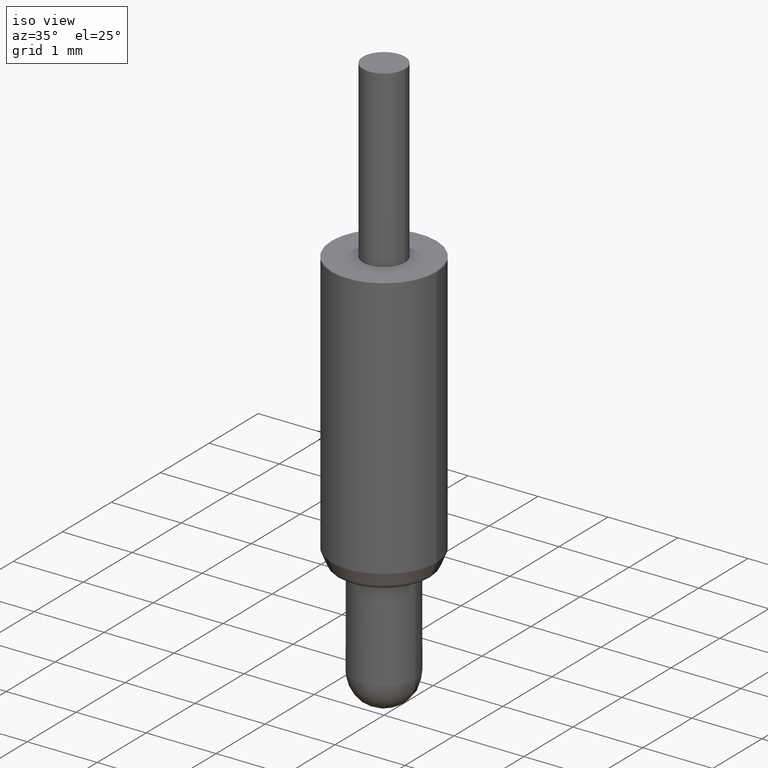
[diagram: clean part render]
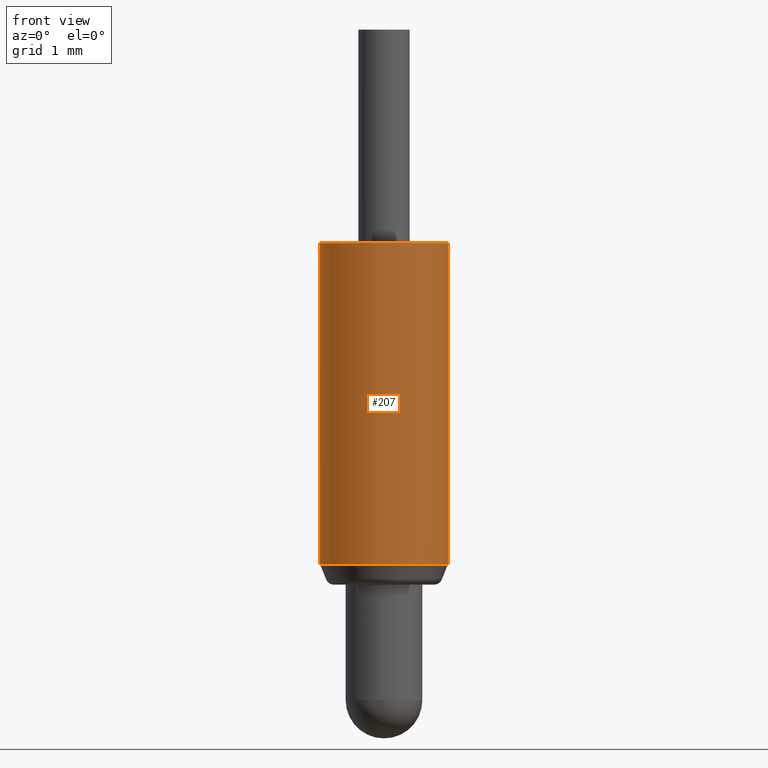
[diagram: tour spotlight — one face highlighted and labeled with its STEP entity id]
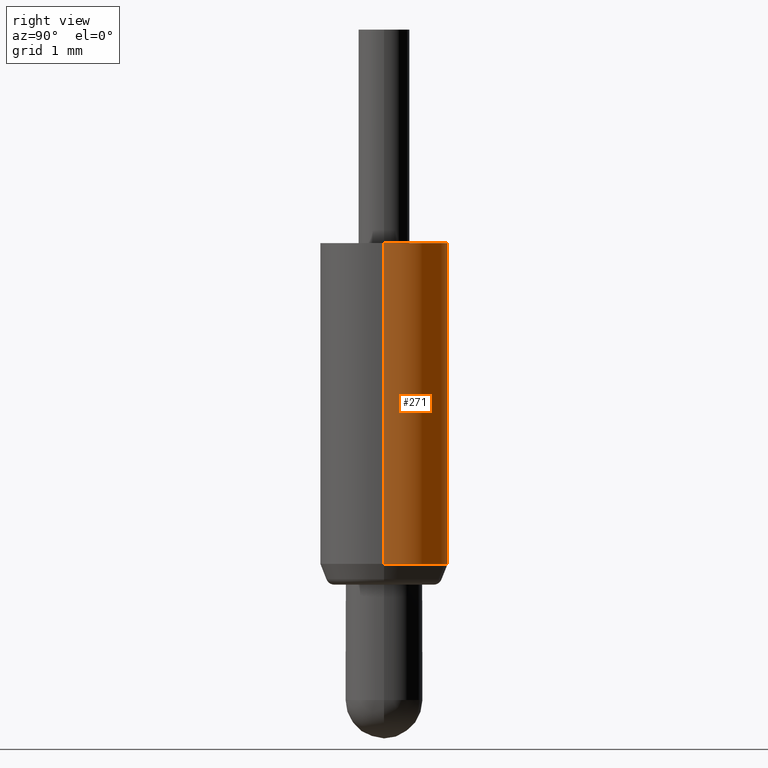
[diagram: tour spotlight — one face highlighted and labeled with its STEP entity id]
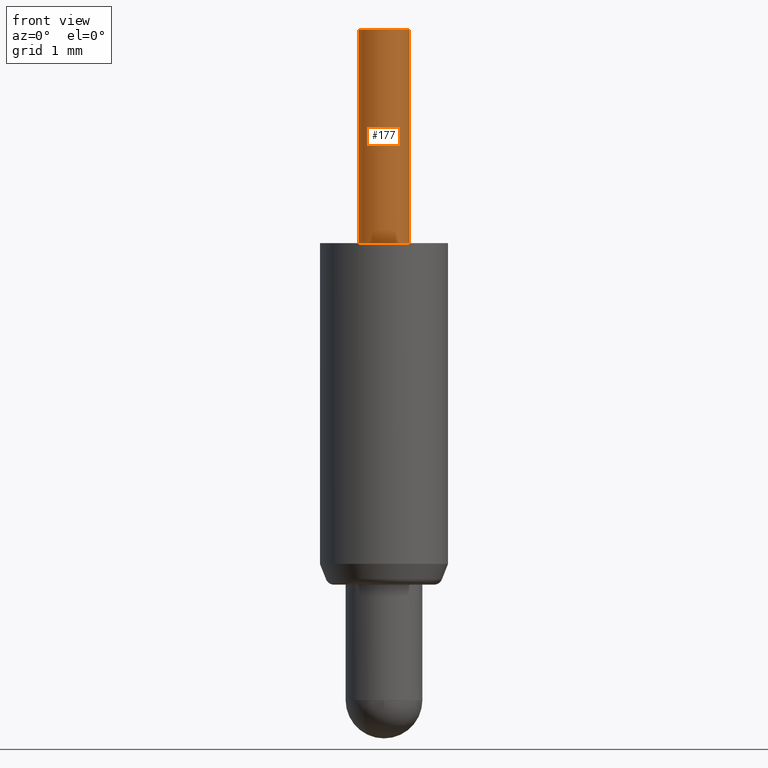
[diagram: tour spotlight — one face highlighted and labeled with its STEP entity id]
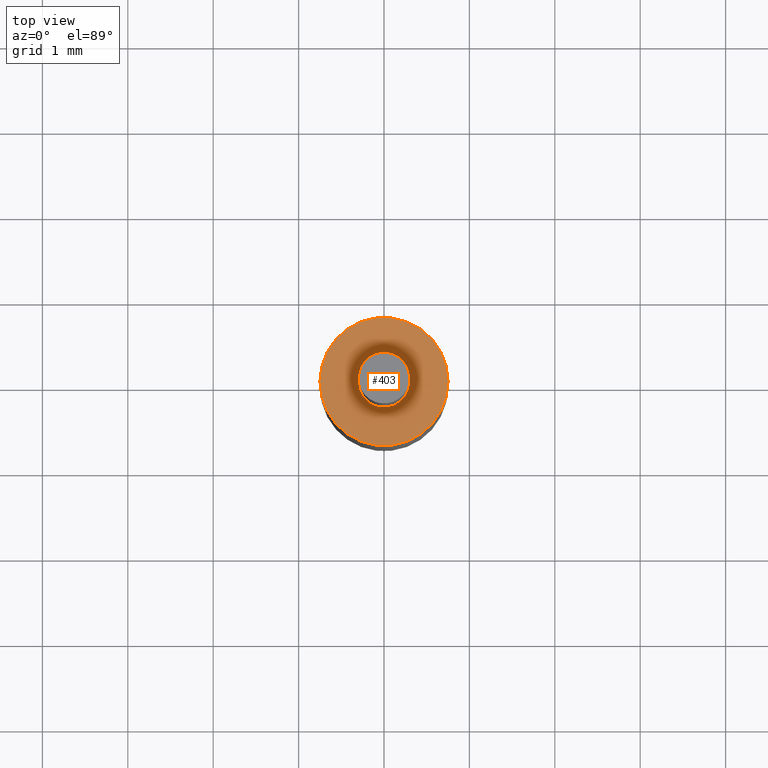
[diagram: tour spotlight — one face highlighted and labeled with its STEP entity id]
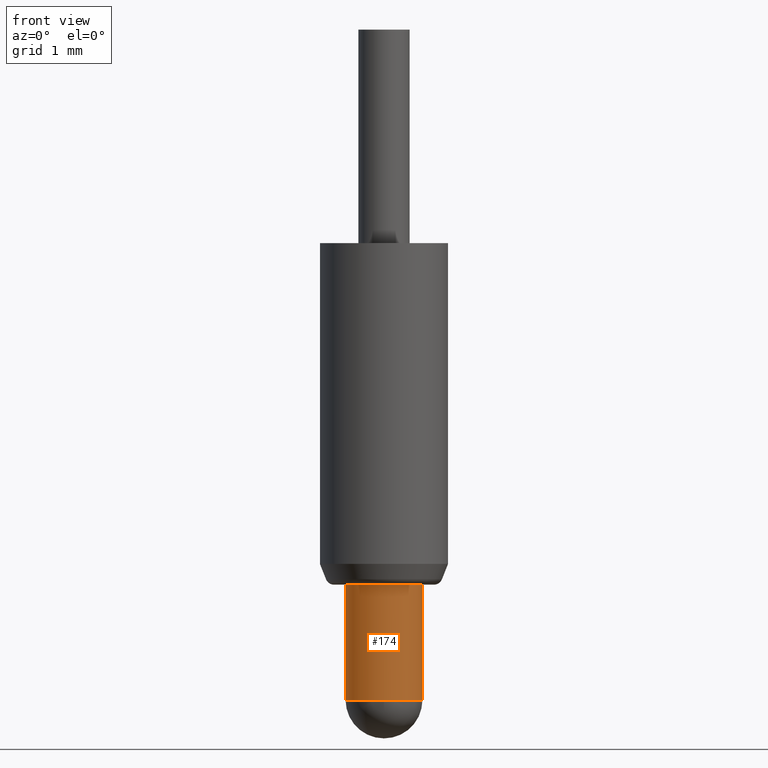
[diagram: tour spotlight — one face highlighted and labeled with its STEP entity id]
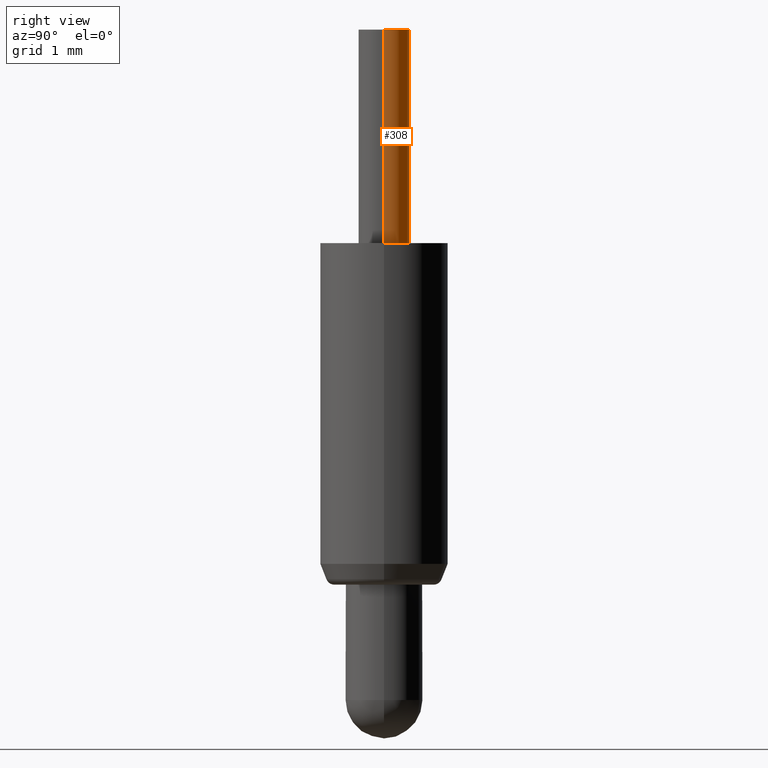
[diagram: tour spotlight — one face highlighted and labeled with its STEP entity id]
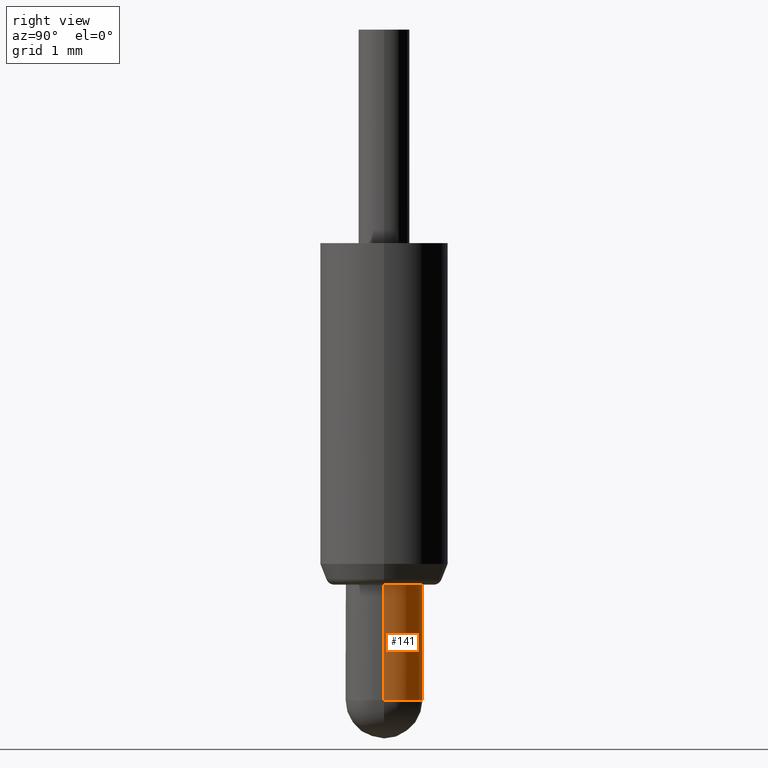
[diagram: tour spotlight — one face highlighted and labeled with its STEP entity id]
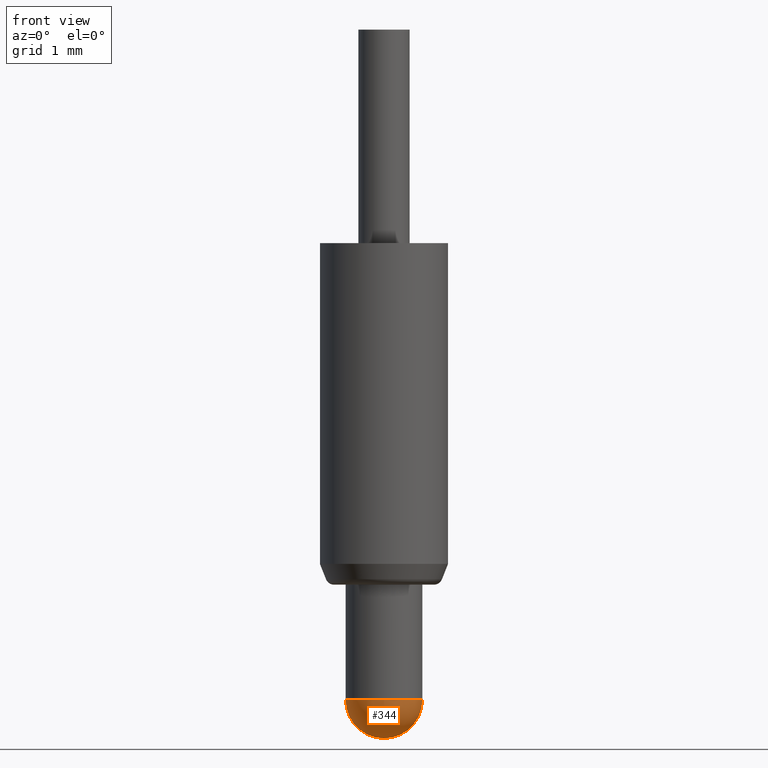
[diagram: tour spotlight — one face highlighted and labeled with its STEP entity id]
A machine part: a face-by-face anatomy tour. The part has 15 B-rep faces; the first image is the clean iso view, then the 8 largest visible faces are spotlighted one at a time (largest first), each with its STEP entity span.

Face 1 — front view, entity #207. In plain terms, the highlighted cylindrical surface (partial cylindrical patch) has radius 0.75 mm, axis along (-0, -0, 1).
Definition (entity closure, byte-faithful):
#12 = EDGE_CURVE ( 'NONE', #266, #188, #50, .T. ) ;
#24 = CARTESIAN_POINT ( 'NONE',  ( 0.7499999999999995600, 0.0000000000000000000, 5.799999999999999800 ) ) ;
#26 = EDGE_LOOP ( 'NONE', ( #83, #292, #402, #235 ) ) ;
#35 = CARTESIAN_POINT ( 'NONE',  ( 0.0000000000000000000, 0.0000000000000000000, 5.799999999999999800 ) ) ;
#37 = AXIS2_PLACEMENT_3D ( 'NONE', #35, #196, #395 ) ;
#41 = LINE ( 'NONE', #153, #270 ) ;
#50 = LINE ( 'NONE', #245, #384 ) ;
#56 = DIRECTION ( 'NONE',  ( -0.0000000000000000000, -0.0000000000000000000, 1.000000000000000000 ) ) ;
#64 = AXIS2_PLACEMENT_3D ( 'NONE', #198, #56, #168 ) ;
#73 = DIRECTION ( 'NONE',  ( -0.0000000000000000000, -0.0000000000000000000, 1.000000000000000000 ) ) ;
#83 = ORIENTED_EDGE ( 'NONE', *, *, #205, .F. ) ;
#87 = CARTESIAN_POINT ( 'NONE',  ( 0.0000000000000000000, 0.0000000000000000000, 8.300000000000000700 ) ) ;
#131 = CARTESIAN_POINT ( 'NONE',  ( -0.7500000000000000000, 9.184850993605150900E-017, 2.043174604063049000 ) ) ;
#147 = CARTESIAN_POINT ( 'NONE',  ( 0.7500000000000000000, 0.0000000000000000000, 2.043174604063049000 ) ) ;
#153 = CARTESIAN_POINT ( 'NONE',  ( -0.7499999999999997800, 9.184850993605147200E-017, 8.300000000000000700 ) ) ;
#168 = DIRECTION ( 'NONE',  ( 1.000000000000000000, 0.0000000000000000000, 0.0000000000000000000 ) ) ;
#188 = VERTEX_POINT ( 'NONE', #24 ) ;
#196 = DIRECTION ( 'NONE',  ( -0.0000000000000000000, -0.0000000000000000000, 1.000000000000000000 ) ) ;
#198 = CARTESIAN_POINT ( 'NONE',  ( 0.0000000000000000000, 0.0000000000000000000, 2.043174604063049000 ) ) ;
#205 = EDGE_CURVE ( 'NONE', #408, #255, #41, .T. ) ;
#207 = ADVANCED_FACE ( 'NONE', ( #337 ), #331, .T. ) ;
#214 = CIRCLE ( 'NONE', #64, 0.7500000000000000000 ) ;
#223 = AXIS2_PLACEMENT_3D ( 'NONE', #87, #226, #288 ) ;
#226 = DIRECTION ( 'NONE',  ( -0.0000000000000000000, -0.0000000000000000000, 1.000000000000000000 ) ) ;
#235 = ORIENTED_EDGE ( 'NONE', *, *, #394, .F. ) ;
#245 = CARTESIAN_POINT ( 'NONE',  ( 0.7499999999999997800, 0.0000000000000000000, 8.300000000000000700 ) ) ;
#255 = VERTEX_POINT ( 'NONE', #286 ) ;
#266 = VERTEX_POINT ( 'NONE', #147 ) ;
#270 = VECTOR ( 'NONE', #330, 1000.000000000000000 ) ;
#286 = CARTESIAN_POINT ( 'NONE',  ( -0.7499999999999995600, 9.184850993605146000E-017, 5.799999999999999800 ) ) ;
#288 = DIRECTION ( 'NONE',  ( 1.000000000000000000, 0.0000000000000000000, 0.0000000000000000000 ) ) ;
#292 = ORIENTED_EDGE ( 'NONE', *, *, #361, .T. ) ;
#330 = DIRECTION ( 'NONE',  ( -0.0000000000000000000, -0.0000000000000000000, 1.000000000000000000 ) ) ;
#331 = CYLINDRICAL_SURFACE ( 'NONE', #223, 0.7499999999999997800 ) ;
#337 = FACE_OUTER_BOUND ( 'NONE', #26, .T. ) ;
#361 = EDGE_CURVE ( 'NONE', #408, #266, #214, .T. ) ;
#375 = CIRCLE ( 'NONE', #37, 0.7499999999999995600 ) ;
#384 = VECTOR ( 'NONE', #73, 1000.000000000000000 ) ;
#394 = EDGE_CURVE ( 'NONE', #255, #188, #375, .T. ) ;
#395 = DIRECTION ( 'NONE',  ( 1.000000000000000000, 0.0000000000000000000, 0.0000000000000000000 ) ) ;
#402 = ORIENTED_EDGE ( 'NONE', *, *, #12, .T. ) ;
#408 = VERTEX_POINT ( 'NONE', #131 ) ;

Face 2 — right view, entity #271. In plain terms, the highlighted cylindrical surface (partial cylindrical patch) has radius 0.75 mm, axis along (-0, -0, 1).
Definition (entity closure, byte-faithful):
#12 = EDGE_CURVE ( 'NONE', #266, #188, #50, .T. ) ;
#24 = CARTESIAN_POINT ( 'NONE',  ( 0.7499999999999995600, 0.0000000000000000000, 5.799999999999999800 ) ) ;
#41 = LINE ( 'NONE', #153, #270 ) ;
#48 = DIRECTION ( 'NONE',  ( -0.0000000000000000000, -0.0000000000000000000, 1.000000000000000000 ) ) ;
#50 = LINE ( 'NONE', #245, #384 ) ;
#73 = DIRECTION ( 'NONE',  ( -0.0000000000000000000, -0.0000000000000000000, 1.000000000000000000 ) ) ;
#78 = DIRECTION ( 'NONE',  ( 1.000000000000000000, 0.0000000000000000000, 0.0000000000000000000 ) ) ;
#101 = AXIS2_PLACEMENT_3D ( 'NONE', #320, #48, #78 ) ;
#118 = EDGE_CURVE ( 'NONE', #266, #408, #341, .T. ) ;
#131 = CARTESIAN_POINT ( 'NONE',  ( -0.7500000000000000000, 9.184850993605150900E-017, 2.043174604063049000 ) ) ;
#137 = CIRCLE ( 'NONE', #287, 0.7499999999999995600 ) ;
#147 = CARTESIAN_POINT ( 'NONE',  ( 0.7500000000000000000, 0.0000000000000000000, 2.043174604063049000 ) ) ;
#152 = CARTESIAN_POINT ( 'NONE',  ( 0.0000000000000000000, 0.0000000000000000000, 5.799999999999999800 ) ) ;
#153 = CARTESIAN_POINT ( 'NONE',  ( -0.7499999999999997800, 9.184850993605147200E-017, 8.300000000000000700 ) ) ;
#172 = FACE_OUTER_BOUND ( 'NONE', #313, .T. ) ;
#179 = ORIENTED_EDGE ( 'NONE', *, *, #205, .T. ) ;
#188 = VERTEX_POINT ( 'NONE', #24 ) ;
#192 = CARTESIAN_POINT ( 'NONE',  ( 0.0000000000000000000, 0.0000000000000000000, 8.300000000000000700 ) ) ;
#205 = EDGE_CURVE ( 'NONE', #408, #255, #41, .T. ) ;
#209 = AXIS2_PLACEMENT_3D ( 'NONE', #192, #424, #381 ) ;
#245 = CARTESIAN_POINT ( 'NONE',  ( 0.7499999999999997800, 0.0000000000000000000, 8.300000000000000700 ) ) ;
#255 = VERTEX_POINT ( 'NONE', #286 ) ;
#266 = VERTEX_POINT ( 'NONE', #147 ) ;
#270 = VECTOR ( 'NONE', #330, 1000.000000000000000 ) ;
#271 = ADVANCED_FACE ( 'NONE', ( #172 ), #315, .T. ) ;
#286 = CARTESIAN_POINT ( 'NONE',  ( -0.7499999999999995600, 9.184850993605146000E-017, 5.799999999999999800 ) ) ;
#287 = AXIS2_PLACEMENT_3D ( 'NONE', #152, #387, #358 ) ;
#313 = EDGE_LOOP ( 'NONE', ( #348, #179, #373, #398 ) ) ;
#315 = CYLINDRICAL_SURFACE ( 'NONE', #209, 0.7499999999999997800 ) ;
#320 = CARTESIAN_POINT ( 'NONE',  ( 0.0000000000000000000, 0.0000000000000000000, 2.043174604063049000 ) ) ;
#330 = DIRECTION ( 'NONE',  ( -0.0000000000000000000, -0.0000000000000000000, 1.000000000000000000 ) ) ;
#341 = CIRCLE ( 'NONE', #101, 0.7500000000000000000 ) ;
#342 = EDGE_CURVE ( 'NONE', #188, #255, #137, .T. ) ;
#348 = ORIENTED_EDGE ( 'NONE', *, *, #118, .T. ) ;
#358 = DIRECTION ( 'NONE',  ( 1.000000000000000000, 0.0000000000000000000, 0.0000000000000000000 ) ) ;
#373 = ORIENTED_EDGE ( 'NONE', *, *, #342, .F. ) ;
#381 = DIRECTION ( 'NONE',  ( 1.000000000000000000, 0.0000000000000000000, 0.0000000000000000000 ) ) ;
#384 = VECTOR ( 'NONE', #73, 1000.000000000000000 ) ;
#387 = DIRECTION ( 'NONE',  ( -0.0000000000000000000, -0.0000000000000000000, 1.000000000000000000 ) ) ;
#398 = ORIENTED_EDGE ( 'NONE', *, *, #12, .F. ) ;
#408 = VERTEX_POINT ( 'NONE', #131 ) ;
#424 = DIRECTION ( 'NONE',  ( -0.0000000000000000000, -0.0000000000000000000, 1.000000000000000000 ) ) ;

Face 3 — front view, entity #177. In plain terms, the highlighted cylindrical surface (edge-blend (fillet) strip) has radius 0.3 mm, axis along (-0, -0, 1).
Definition (entity closure, byte-faithful):
#10 = VECTOR ( 'NONE', #355, 1000.000000000000000 ) ;
#17 = DIRECTION ( 'NONE',  ( -0.0000000000000000000, -0.0000000000000000000, 1.000000000000000000 ) ) ;
#18 = DIRECTION ( 'NONE',  ( 1.000000000000000000, 0.0000000000000000000, 0.0000000000000000000 ) ) ;
#21 = CARTESIAN_POINT ( 'NONE',  ( -0.2999999999999999300, 3.673940397442058900E-017, 5.799999999999999800 ) ) ;
#22 = CARTESIAN_POINT ( 'NONE',  ( 0.2999999999999998200, 0.0000000000000000000, 8.300000000000000700 ) ) ;
#30 = AXIS2_PLACEMENT_3D ( 'NONE', #114, #252, #18 ) ;
#44 = ORIENTED_EDGE ( 'NONE', *, *, #275, .T. ) ;
#57 = CIRCLE ( 'NONE', #283, 0.2999999999999999900 ) ;
#62 = VECTOR ( 'NONE', #17, 1000.000000000000000 ) ;
#66 = CYLINDRICAL_SURFACE ( 'NONE', #98, 0.2999999999999998200 ) ;
#68 = LINE ( 'NONE', #146, #62 ) ;
#80 = DIRECTION ( 'NONE',  ( -0.0000000000000000000, -0.0000000000000000000, 1.000000000000000000 ) ) ;
#86 = EDGE_LOOP ( 'NONE', ( #346, #269, #44, #356 ) ) ;
#97 = EDGE_CURVE ( 'NONE', #156, #103, #68, .T. ) ;
#98 = AXIS2_PLACEMENT_3D ( 'NONE', #414, #80, #324 ) ;
#103 = VERTEX_POINT ( 'NONE', #276 ) ;
#114 = CARTESIAN_POINT ( 'NONE',  ( 0.0000000000000000000, 0.0000000000000000000, 8.300000000000000700 ) ) ;
#122 = CARTESIAN_POINT ( 'NONE',  ( 0.0000000000000000000, 0.0000000000000000000, 5.799999999999999800 ) ) ;
#146 = CARTESIAN_POINT ( 'NONE',  ( -0.2999999999999998200, 3.673940397442057600E-017, 8.300000000000000700 ) ) ;
#156 = VERTEX_POINT ( 'NONE', #21 ) ;
#177 = ADVANCED_FACE ( 'NONE', ( #370 ), #66, .T. ) ;
#181 = VERTEX_POINT ( 'NONE', #423 ) ;
#183 = LINE ( 'NONE', #22, #10 ) ;
#238 = EDGE_CURVE ( 'NONE', #103, #380, #425, .T. ) ;
#241 = EDGE_CURVE ( 'NONE', #156, #181, #57, .T. ) ;
#252 = DIRECTION ( 'NONE',  ( -0.0000000000000000000, -0.0000000000000000000, 1.000000000000000000 ) ) ;
#269 = ORIENTED_EDGE ( 'NONE', *, *, #241, .T. ) ;
#275 = EDGE_CURVE ( 'NONE', #181, #380, #183, .T. ) ;
#276 = CARTESIAN_POINT ( 'NONE',  ( -0.2999999999999996600, 3.673940397442057000E-017, 8.300000000000000700 ) ) ;
#283 = AXIS2_PLACEMENT_3D ( 'NONE', #122, #325, #328 ) ;
#324 = DIRECTION ( 'NONE',  ( 1.000000000000000000, 0.0000000000000000000, 0.0000000000000000000 ) ) ;
#325 = DIRECTION ( 'NONE',  ( -0.0000000000000000000, -0.0000000000000000000, 1.000000000000000000 ) ) ;
#328 = DIRECTION ( 'NONE',  ( 1.000000000000000000, 0.0000000000000000000, 0.0000000000000000000 ) ) ;
#346 = ORIENTED_EDGE ( 'NONE', *, *, #97, .F. ) ;
#355 = DIRECTION ( 'NONE',  ( -0.0000000000000000000, -0.0000000000000000000, 1.000000000000000000 ) ) ;
#356 = ORIENTED_EDGE ( 'NONE', *, *, #238, .F. ) ;
#365 = CARTESIAN_POINT ( 'NONE',  ( 0.2999999999999996600, 0.0000000000000000000, 8.300000000000000700 ) ) ;
#370 = FACE_OUTER_BOUND ( 'NONE', #86, .T. ) ;
#380 = VERTEX_POINT ( 'NONE', #365 ) ;
#414 = CARTESIAN_POINT ( 'NONE',  ( 0.0000000000000000000, 0.0000000000000000000, 8.300000000000000700 ) ) ;
#423 = CARTESIAN_POINT ( 'NONE',  ( 0.2999999999999999900, 0.0000000000000000000, 5.799999999999999800 ) ) ;
#425 = CIRCLE ( 'NONE', #30, 0.2999999999999996600 ) ;

Face 4 — top view, entity #403. In plain terms, the highlighted planar face has unit normal (0, 0, -1).
Definition (entity closure, byte-faithful):
#1 = PLANE ( 'NONE',  #302 ) ;
#21 = CARTESIAN_POINT ( 'NONE',  ( -0.2999999999999999300, 3.673940397442058900E-017, 5.799999999999999800 ) ) ;
#24 = CARTESIAN_POINT ( 'NONE',  ( 0.7499999999999995600, 0.0000000000000000000, 5.799999999999999800 ) ) ;
#33 = ORIENTED_EDGE ( 'NONE', *, *, #241, .F. ) ;
#35 = CARTESIAN_POINT ( 'NONE',  ( 0.0000000000000000000, 0.0000000000000000000, 5.799999999999999800 ) ) ;
#37 = AXIS2_PLACEMENT_3D ( 'NONE', #35, #196, #395 ) ;
#57 = CIRCLE ( 'NONE', #283, 0.2999999999999999900 ) ;
#60 = DIRECTION ( 'NONE',  ( 1.000000000000000000, 0.0000000000000000000, 0.0000000000000000000 ) ) ;
#63 = DIRECTION ( 'NONE',  ( -1.000000000000000000, 0.0000000000000000000, -0.0000000000000000000 ) ) ;
#120 = ORIENTED_EDGE ( 'NONE', *, *, #215, .F. ) ;
#122 = CARTESIAN_POINT ( 'NONE',  ( 0.0000000000000000000, 0.0000000000000000000, 5.799999999999999800 ) ) ;
#123 = FACE_OUTER_BOUND ( 'NONE', #228, .T. ) ;
#129 = DIRECTION ( 'NONE',  ( -0.0000000000000000000, -0.0000000000000000000, 1.000000000000000000 ) ) ;
#137 = CIRCLE ( 'NONE', #287, 0.7499999999999995600 ) ;
#152 = CARTESIAN_POINT ( 'NONE',  ( 0.0000000000000000000, 0.0000000000000000000, 5.799999999999999800 ) ) ;
#155 = ORIENTED_EDGE ( 'NONE', *, *, #394, .T. ) ;
#156 = VERTEX_POINT ( 'NONE', #21 ) ;
#181 = VERTEX_POINT ( 'NONE', #423 ) ;
#187 = EDGE_LOOP ( 'NONE', ( #120, #33 ) ) ;
#188 = VERTEX_POINT ( 'NONE', #24 ) ;
#196 = DIRECTION ( 'NONE',  ( -0.0000000000000000000, -0.0000000000000000000, 1.000000000000000000 ) ) ;
#213 = FACE_BOUND ( 'NONE', #187, .T. ) ;
#215 = EDGE_CURVE ( 'NONE', #181, #156, #363, .T. ) ;
#228 = EDGE_LOOP ( 'NONE', ( #369, #155 ) ) ;
#234 = DIRECTION ( 'NONE',  ( 0.0000000000000000000, 0.0000000000000000000, -1.000000000000000000 ) ) ;
#241 = EDGE_CURVE ( 'NONE', #156, #181, #57, .T. ) ;
#255 = VERTEX_POINT ( 'NONE', #286 ) ;
#265 = CARTESIAN_POINT ( 'NONE',  ( -0.7499999999999995600, 0.0000000000000000000, 5.799999999999999800 ) ) ;
#283 = AXIS2_PLACEMENT_3D ( 'NONE', #122, #325, #328 ) ;
#286 = CARTESIAN_POINT ( 'NONE',  ( -0.7499999999999995600, 9.184850993605146000E-017, 5.799999999999999800 ) ) ;
#287 = AXIS2_PLACEMENT_3D ( 'NONE', #152, #387, #358 ) ;
#298 = CARTESIAN_POINT ( 'NONE',  ( 0.0000000000000000000, 0.0000000000000000000, 5.799999999999999800 ) ) ;
#302 = AXIS2_PLACEMENT_3D ( 'NONE', #265, #234, #63 ) ;
#304 = AXIS2_PLACEMENT_3D ( 'NONE', #298, #129, #60 ) ;
#325 = DIRECTION ( 'NONE',  ( -0.0000000000000000000, -0.0000000000000000000, 1.000000000000000000 ) ) ;
#328 = DIRECTION ( 'NONE',  ( 1.000000000000000000, 0.0000000000000000000, 0.0000000000000000000 ) ) ;
#342 = EDGE_CURVE ( 'NONE', #188, #255, #137, .T. ) ;
#358 = DIRECTION ( 'NONE',  ( 1.000000000000000000, 0.0000000000000000000, 0.0000000000000000000 ) ) ;
#363 = CIRCLE ( 'NONE', #304, 0.2999999999999999900 ) ;
#369 = ORIENTED_EDGE ( 'NONE', *, *, #342, .T. ) ;
#375 = CIRCLE ( 'NONE', #37, 0.7499999999999995600 ) ;
#387 = DIRECTION ( 'NONE',  ( -0.0000000000000000000, -0.0000000000000000000, 1.000000000000000000 ) ) ;
#394 = EDGE_CURVE ( 'NONE', #255, #188, #375, .T. ) ;
#395 = DIRECTION ( 'NONE',  ( 1.000000000000000000, 0.0000000000000000000, 0.0000000000000000000 ) ) ;
#403 = ADVANCED_FACE ( 'NONE', ( #213, #123 ), #1, .F. ) ;
#423 = CARTESIAN_POINT ( 'NONE',  ( 0.2999999999999999900, 0.0000000000000000000, 5.799999999999999800 ) ) ;

Face 5 — front view, entity #174. In plain terms, the highlighted cylindrical surface (partial cylindrical patch) has radius 0.45 mm, axis along (-0, -0, 1).
Definition (entity closure, byte-faithful):
#3 = VERTEX_POINT ( 'NONE', #106 ) ;
#34 = ORIENTED_EDGE ( 'NONE', *, *, #419, .F. ) ;
#42 = CIRCLE ( 'NONE', #406, 0.4499999999999997900 ) ;
#46 = CARTESIAN_POINT ( 'NONE',  ( -0.4499999999999997900, 5.510910596163086500E-017, 1.799999999999999600 ) ) ;
#65 = VERTEX_POINT ( 'NONE', #46 ) ;
#76 = FACE_OUTER_BOUND ( 'NONE', #139, .T. ) ;
#79 = ORIENTED_EDGE ( 'NONE', *, *, #374, .T. ) ;
#88 = DIRECTION ( 'NONE',  ( 1.000000000000000000, 0.0000000000000000000, 0.0000000000000000000 ) ) ;
#93 = CARTESIAN_POINT ( 'NONE',  ( -0.4499999999999999000, 5.510910596163087700E-017, 8.300000000000000700 ) ) ;
#105 = AXIS2_PLACEMENT_3D ( 'NONE', #336, #335, #263 ) ;
#106 = CARTESIAN_POINT ( 'NONE',  ( -0.4499999999999999000, 5.510910596163087700E-017, 0.4500000000000007300 ) ) ;
#113 = CARTESIAN_POINT ( 'NONE',  ( 0.4499999999999999000, 0.0000000000000000000, 0.4500000000000007300 ) ) ;
#116 = CIRCLE ( 'NONE', #105, 0.4499999999999999000 ) ;
#126 = DIRECTION ( 'NONE',  ( -0.0000000000000000000, -0.0000000000000000000, 1.000000000000000000 ) ) ;
#139 = EDGE_LOOP ( 'NONE', ( #390, #357, #79, #34 ) ) ;
#166 = CYLINDRICAL_SURFACE ( 'NONE', #393, 0.4499999999999999000 ) ;
#170 = VERTEX_POINT ( 'NONE', #113 ) ;
#174 = ADVANCED_FACE ( 'NONE', ( #76 ), #166, .T. ) ;
#191 = DIRECTION ( 'NONE',  ( -0.0000000000000000000, -0.0000000000000000000, 1.000000000000000000 ) ) ;
#193 = CARTESIAN_POINT ( 'NONE',  ( 0.4499999999999997900, 0.0000000000000000000, 1.799999999999999600 ) ) ;
#202 = LINE ( 'NONE', #237, #303 ) ;
#204 = VECTOR ( 'NONE', #126, 1000.000000000000000 ) ;
#237 = CARTESIAN_POINT ( 'NONE',  ( 0.4499999999999999000, 0.0000000000000000000, 8.300000000000000700 ) ) ;
#251 = VERTEX_POINT ( 'NONE', #193 ) ;
#263 = DIRECTION ( 'NONE',  ( 1.000000000000000000, 0.0000000000000000000, 0.0000000000000000000 ) ) ;
#282 = CARTESIAN_POINT ( 'NONE',  ( 0.0000000000000000000, 0.0000000000000000000, 8.300000000000000700 ) ) ;
#284 = LINE ( 'NONE', #93, #204 ) ;
#291 = DIRECTION ( 'NONE',  ( -0.0000000000000000000, -0.0000000000000000000, 1.000000000000000000 ) ) ;
#301 = CARTESIAN_POINT ( 'NONE',  ( 0.0000000000000000000, 0.0000000000000000000, 1.799999999999999600 ) ) ;
#303 = VECTOR ( 'NONE', #332, 1000.000000000000000 ) ;
#332 = DIRECTION ( 'NONE',  ( -0.0000000000000000000, -0.0000000000000000000, 1.000000000000000000 ) ) ;
#335 = DIRECTION ( 'NONE',  ( -0.0000000000000000000, -0.0000000000000000000, 1.000000000000000000 ) ) ;
#336 = CARTESIAN_POINT ( 'NONE',  ( 0.0000000000000000000, 0.0000000000000000000, 0.4500000000000007300 ) ) ;
#350 = DIRECTION ( 'NONE',  ( 1.000000000000000000, 0.0000000000000000000, 0.0000000000000000000 ) ) ;
#357 = ORIENTED_EDGE ( 'NONE', *, *, #377, .T. ) ;
#374 = EDGE_CURVE ( 'NONE', #170, #251, #202, .T. ) ;
#377 = EDGE_CURVE ( 'NONE', #3, #170, #116, .T. ) ;
#390 = ORIENTED_EDGE ( 'NONE', *, *, #401, .F. ) ;
#393 = AXIS2_PLACEMENT_3D ( 'NONE', #282, #191, #350 ) ;
#401 = EDGE_CURVE ( 'NONE', #3, #65, #284, .T. ) ;
#406 = AXIS2_PLACEMENT_3D ( 'NONE', #301, #291, #88 ) ;
#419 = EDGE_CURVE ( 'NONE', #65, #251, #42, .T. ) ;

Face 6 — right view, entity #308. In plain terms, the highlighted cylindrical surface (edge-blend (fillet) strip) has radius 0.3 mm, axis along (-0, -0, 1).
Definition (entity closure, byte-faithful):
#10 = VECTOR ( 'NONE', #355, 1000.000000000000000 ) ;
#17 = DIRECTION ( 'NONE',  ( -0.0000000000000000000, -0.0000000000000000000, 1.000000000000000000 ) ) ;
#21 = CARTESIAN_POINT ( 'NONE',  ( -0.2999999999999999300, 3.673940397442058900E-017, 5.799999999999999800 ) ) ;
#22 = CARTESIAN_POINT ( 'NONE',  ( 0.2999999999999998200, 0.0000000000000000000, 8.300000000000000700 ) ) ;
#45 = FACE_OUTER_BOUND ( 'NONE', #216, .T. ) ;
#51 = DIRECTION ( 'NONE',  ( 1.000000000000000000, 0.0000000000000000000, 0.0000000000000000000 ) ) ;
#60 = DIRECTION ( 'NONE',  ( 1.000000000000000000, 0.0000000000000000000, 0.0000000000000000000 ) ) ;
#62 = VECTOR ( 'NONE', #17, 1000.000000000000000 ) ;
#68 = LINE ( 'NONE', #146, #62 ) ;
#71 = ORIENTED_EDGE ( 'NONE', *, *, #97, .T. ) ;
#97 = EDGE_CURVE ( 'NONE', #156, #103, #68, .T. ) ;
#100 = ORIENTED_EDGE ( 'NONE', *, *, #275, .F. ) ;
#103 = VERTEX_POINT ( 'NONE', #276 ) ;
#119 = DIRECTION ( 'NONE',  ( -0.0000000000000000000, -0.0000000000000000000, 1.000000000000000000 ) ) ;
#121 = DIRECTION ( 'NONE',  ( -0.0000000000000000000, -0.0000000000000000000, 1.000000000000000000 ) ) ;
#129 = DIRECTION ( 'NONE',  ( -0.0000000000000000000, -0.0000000000000000000, 1.000000000000000000 ) ) ;
#142 = EDGE_CURVE ( 'NONE', #380, #103, #222, .T. ) ;
#146 = CARTESIAN_POINT ( 'NONE',  ( -0.2999999999999998200, 3.673940397442057600E-017, 8.300000000000000700 ) ) ;
#156 = VERTEX_POINT ( 'NONE', #21 ) ;
#158 = CARTESIAN_POINT ( 'NONE',  ( 0.0000000000000000000, 0.0000000000000000000, 8.300000000000000700 ) ) ;
#167 = AXIS2_PLACEMENT_3D ( 'NONE', #158, #119, #290 ) ;
#181 = VERTEX_POINT ( 'NONE', #423 ) ;
#183 = LINE ( 'NONE', #22, #10 ) ;
#215 = EDGE_CURVE ( 'NONE', #181, #156, #363, .T. ) ;
#216 = EDGE_LOOP ( 'NONE', ( #280, #71, #368, #100 ) ) ;
#222 = CIRCLE ( 'NONE', #167, 0.2999999999999996600 ) ;
#246 = AXIS2_PLACEMENT_3D ( 'NONE', #249, #121, #51 ) ;
#249 = CARTESIAN_POINT ( 'NONE',  ( 0.0000000000000000000, 0.0000000000000000000, 8.300000000000000700 ) ) ;
#275 = EDGE_CURVE ( 'NONE', #181, #380, #183, .T. ) ;
#276 = CARTESIAN_POINT ( 'NONE',  ( -0.2999999999999996600, 3.673940397442057000E-017, 8.300000000000000700 ) ) ;
#280 = ORIENTED_EDGE ( 'NONE', *, *, #215, .T. ) ;
#290 = DIRECTION ( 'NONE',  ( 1.000000000000000000, 0.0000000000000000000, 0.0000000000000000000 ) ) ;
#298 = CARTESIAN_POINT ( 'NONE',  ( 0.0000000000000000000, 0.0000000000000000000, 5.799999999999999800 ) ) ;
#304 = AXIS2_PLACEMENT_3D ( 'NONE', #298, #129, #60 ) ;
#306 = CYLINDRICAL_SURFACE ( 'NONE', #246, 0.2999999999999998200 ) ;
#308 = ADVANCED_FACE ( 'NONE', ( #45 ), #306, .T. ) ;
#355 = DIRECTION ( 'NONE',  ( -0.0000000000000000000, -0.0000000000000000000, 1.000000000000000000 ) ) ;
#363 = CIRCLE ( 'NONE', #304, 0.2999999999999999900 ) ;
#365 = CARTESIAN_POINT ( 'NONE',  ( 0.2999999999999996600, 0.0000000000000000000, 8.300000000000000700 ) ) ;
#368 = ORIENTED_EDGE ( 'NONE', *, *, #142, .F. ) ;
#380 = VERTEX_POINT ( 'NONE', #365 ) ;
#423 = CARTESIAN_POINT ( 'NONE',  ( 0.2999999999999999900, 0.0000000000000000000, 5.799999999999999800 ) ) ;

Face 7 — right view, entity #141. In plain terms, the highlighted cylindrical surface (partial cylindrical patch) has radius 0.45 mm, axis along (-0, -0, 1).
Definition (entity closure, byte-faithful):
#3 = VERTEX_POINT ( 'NONE', #106 ) ;
#27 = CARTESIAN_POINT ( 'NONE',  ( 0.0000000000000000000, 0.0000000000000000000, 1.799999999999999600 ) ) ;
#40 = EDGE_LOOP ( 'NONE', ( #339, #210, #143, #391 ) ) ;
#46 = CARTESIAN_POINT ( 'NONE',  ( -0.4499999999999997900, 5.510910596163086500E-017, 1.799999999999999600 ) ) ;
#49 = CARTESIAN_POINT ( 'NONE',  ( 0.0000000000000000000, 0.0000000000000000000, 0.4500000000000007300 ) ) ;
#65 = VERTEX_POINT ( 'NONE', #46 ) ;
#67 = AXIS2_PLACEMENT_3D ( 'NONE', #256, #115, #220 ) ;
#92 = CIRCLE ( 'NONE', #184, 0.4499999999999997900 ) ;
#93 = CARTESIAN_POINT ( 'NONE',  ( -0.4499999999999999000, 5.510910596163087700E-017, 8.300000000000000700 ) ) ;
#106 = CARTESIAN_POINT ( 'NONE',  ( -0.4499999999999999000, 5.510910596163087700E-017, 0.4500000000000007300 ) ) ;
#113 = CARTESIAN_POINT ( 'NONE',  ( 0.4499999999999999000, 0.0000000000000000000, 0.4500000000000007300 ) ) ;
#115 = DIRECTION ( 'NONE',  ( -0.0000000000000000000, -0.0000000000000000000, 1.000000000000000000 ) ) ;
#126 = DIRECTION ( 'NONE',  ( -0.0000000000000000000, -0.0000000000000000000, 1.000000000000000000 ) ) ;
#140 = AXIS2_PLACEMENT_3D ( 'NONE', #49, #225, #281 ) ;
#141 = ADVANCED_FACE ( 'NONE', ( #378 ), #159, .T. ) ;
#143 = ORIENTED_EDGE ( 'NONE', *, *, #219, .F. ) ;
#159 = CYLINDRICAL_SURFACE ( 'NONE', #67, 0.4499999999999999000 ) ;
#170 = VERTEX_POINT ( 'NONE', #113 ) ;
#184 = AXIS2_PLACEMENT_3D ( 'NONE', #27, #260, #333 ) ;
#193 = CARTESIAN_POINT ( 'NONE',  ( 0.4499999999999997900, 0.0000000000000000000, 1.799999999999999600 ) ) ;
#202 = LINE ( 'NONE', #237, #303 ) ;
#204 = VECTOR ( 'NONE', #126, 1000.000000000000000 ) ;
#210 = ORIENTED_EDGE ( 'NONE', *, *, #401, .T. ) ;
#219 = EDGE_CURVE ( 'NONE', #251, #65, #92, .T. ) ;
#220 = DIRECTION ( 'NONE',  ( 1.000000000000000000, 0.0000000000000000000, 0.0000000000000000000 ) ) ;
#225 = DIRECTION ( 'NONE',  ( -0.0000000000000000000, -0.0000000000000000000, 1.000000000000000000 ) ) ;
#237 = CARTESIAN_POINT ( 'NONE',  ( 0.4499999999999999000, 0.0000000000000000000, 8.300000000000000700 ) ) ;
#251 = VERTEX_POINT ( 'NONE', #193 ) ;
#256 = CARTESIAN_POINT ( 'NONE',  ( 0.0000000000000000000, 0.0000000000000000000, 8.300000000000000700 ) ) ;
#260 = DIRECTION ( 'NONE',  ( -0.0000000000000000000, -0.0000000000000000000, 1.000000000000000000 ) ) ;
#281 = DIRECTION ( 'NONE',  ( 1.000000000000000000, 0.0000000000000000000, 0.0000000000000000000 ) ) ;
#284 = LINE ( 'NONE', #93, #204 ) ;
#303 = VECTOR ( 'NONE', #332, 1000.000000000000000 ) ;
#307 = EDGE_CURVE ( 'NONE', #170, #3, #349, .T. ) ;
#332 = DIRECTION ( 'NONE',  ( -0.0000000000000000000, -0.0000000000000000000, 1.000000000000000000 ) ) ;
#333 = DIRECTION ( 'NONE',  ( 1.000000000000000000, 0.0000000000000000000, 0.0000000000000000000 ) ) ;
#339 = ORIENTED_EDGE ( 'NONE', *, *, #307, .T. ) ;
#349 = CIRCLE ( 'NONE', #140, 0.4499999999999999000 ) ;
#374 = EDGE_CURVE ( 'NONE', #170, #251, #202, .T. ) ;
#378 = FACE_OUTER_BOUND ( 'NONE', #40, .T. ) ;
#391 = ORIENTED_EDGE ( 'NONE', *, *, #374, .F. ) ;
#401 = EDGE_CURVE ( 'NONE', #3, #65, #284, .T. ) ;

Face 8 — front view, entity #344. In plain terms, the highlighted spherical surface has radius 0.45 mm.
Definition (entity closure, byte-faithful):
#3 = VERTEX_POINT ( 'NONE', #106 ) ;
#15 = EDGE_CURVE ( 'NONE', #144, #170, #217, .T. ) ;
#38 = ORIENTED_EDGE ( 'NONE', *, *, #377, .F. ) ;
#94 = DIRECTION ( 'NONE',  ( 1.000000000000000000, 0.0000000000000000000, 0.0000000000000000000 ) ) ;
#104 = SPHERICAL_SURFACE ( 'NONE', #385, 0.4500000000000000100 ) ;
#105 = AXIS2_PLACEMENT_3D ( 'NONE', #336, #335, #263 ) ;
#106 = CARTESIAN_POINT ( 'NONE',  ( -0.4499999999999999000, 5.510910596163087700E-017, 0.4500000000000007300 ) ) ;
#113 = CARTESIAN_POINT ( 'NONE',  ( 0.4499999999999999000, 0.0000000000000000000, 0.4500000000000007300 ) ) ;
#116 = CIRCLE ( 'NONE', #105, 0.4499999999999999000 ) ;
#128 = FACE_OUTER_BOUND ( 'NONE', #180, .T. ) ;
#144 = VERTEX_POINT ( 'NONE', #420 ) ;
#149 = CARTESIAN_POINT ( 'NONE',  ( 0.0000000000000000000, 0.0000000000000000000, 0.4500000000000007300 ) ) ;
#157 = EDGE_CURVE ( 'NONE', #144, #3, #405, .T. ) ;
#170 = VERTEX_POINT ( 'NONE', #113 ) ;
#180 = EDGE_LOOP ( 'NONE', ( #422, #243, #38 ) ) ;
#182 = DIRECTION ( 'NONE',  ( 0.0000000000000000000, 0.0000000000000000000, -1.000000000000000000 ) ) ;
#185 = AXIS2_PLACEMENT_3D ( 'NONE', #149, #326, #354 ) ;
#217 = CIRCLE ( 'NONE', #334, 0.4500000000000000100 ) ;
#243 = ORIENTED_EDGE ( 'NONE', *, *, #15, .T. ) ;
#263 = DIRECTION ( 'NONE',  ( 1.000000000000000000, 0.0000000000000000000, 0.0000000000000000000 ) ) ;
#312 = CARTESIAN_POINT ( 'NONE',  ( 0.0000000000000000000, 0.0000000000000000000, 0.4500000000000007300 ) ) ;
#326 = DIRECTION ( 'NONE',  ( 1.224646799147353200E-016, 1.000000000000000000, 0.0000000000000000000 ) ) ;
#334 = AXIS2_PLACEMENT_3D ( 'NONE', #312, #379, #182 ) ;
#335 = DIRECTION ( 'NONE',  ( -0.0000000000000000000, -0.0000000000000000000, 1.000000000000000000 ) ) ;
#336 = CARTESIAN_POINT ( 'NONE',  ( 0.0000000000000000000, 0.0000000000000000000, 0.4500000000000007300 ) ) ;
#344 = ADVANCED_FACE ( 'NONE', ( #128 ), #104, .T. ) ;
#354 = DIRECTION ( 'NONE',  ( -1.000000000000000000, 1.224646799147353000E-016, 0.0000000000000000000 ) ) ;
#364 = DIRECTION ( 'NONE',  ( -0.0000000000000000000, 1.000000000000000000, 0.0000000000000000000 ) ) ;
#377 = EDGE_CURVE ( 'NONE', #3, #170, #116, .T. ) ;
#379 = DIRECTION ( 'NONE',  ( 0.0000000000000000000, -1.000000000000000000, 0.0000000000000000000 ) ) ;
#385 = AXIS2_PLACEMENT_3D ( 'NONE', #396, #364, #94 ) ;
#396 = CARTESIAN_POINT ( 'NONE',  ( 0.0000000000000000000, 0.0000000000000000000, 0.4500000000000007300 ) ) ;
#405 = CIRCLE ( 'NONE', #185, 0.4500000000000000100 ) ;
#420 = CARTESIAN_POINT ( 'NONE',  ( 2.755455298081544500E-017, 0.0000000000000000000, 7.589415207398531000E-016 ) ) ;
#422 = ORIENTED_EDGE ( 'NONE', *, *, #157, .F. ) ;